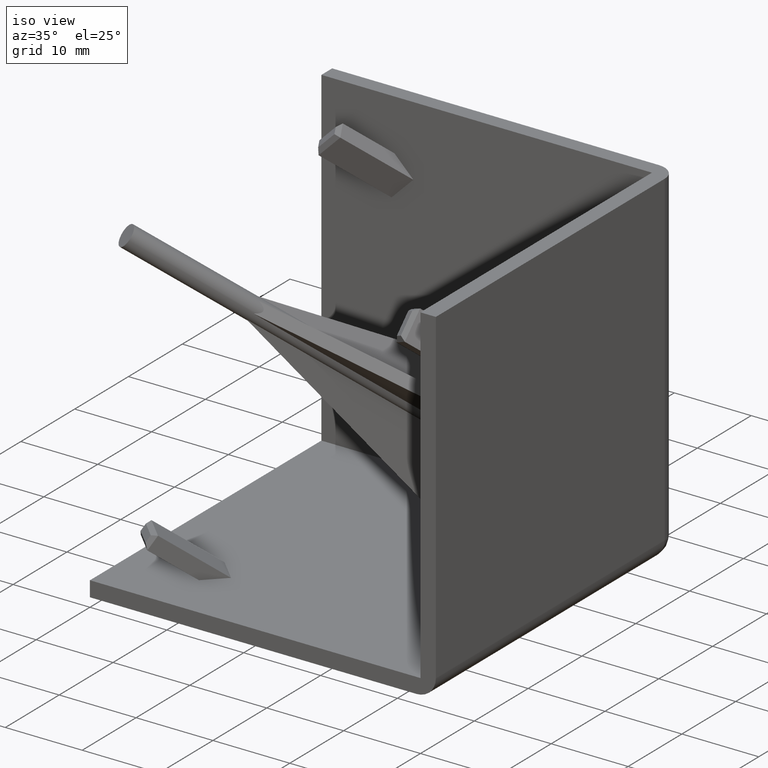
[diagram: clean part render]
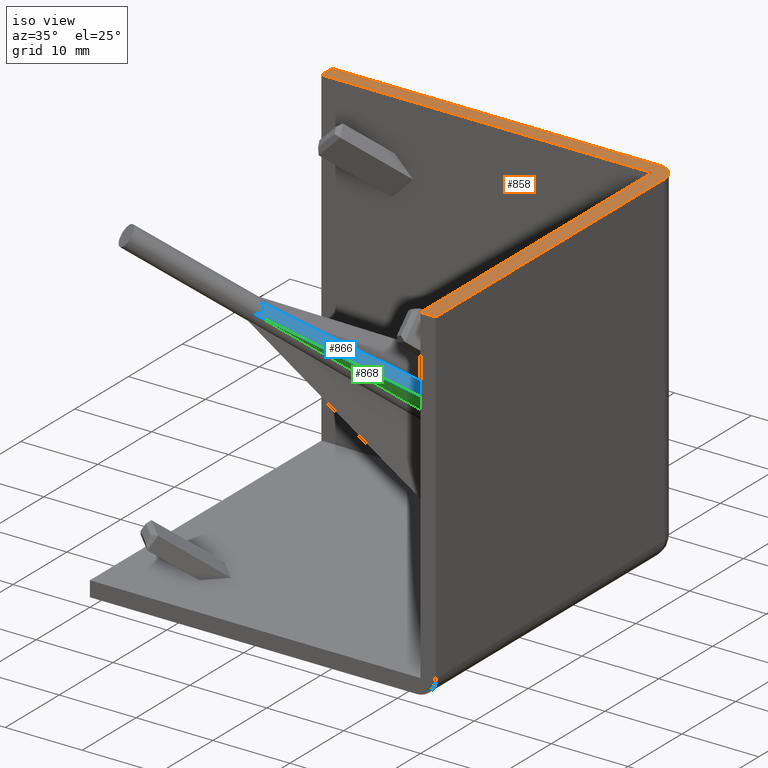
[diagram: same view with three faces highlighted in distinct colors, each labeled with its STEP entity id]
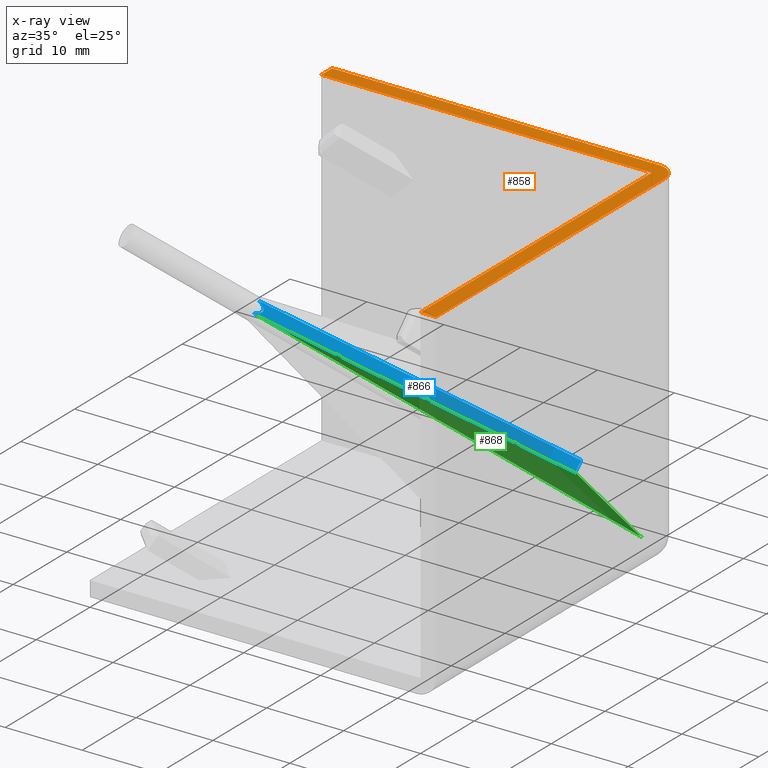
[diagram: x-ray of the same camera — body ghosted, the three highlighted faces saturated]
A machine part, iso view with three faces highlighted in distinct colors.
The next image is the same camera in x-ray (body ghosted, the three faces saturated) — at least one of them is partly hidden behind the body in this view.
Their STEP definitions:

[orange] entity #858 — the highlighted planar face has unit normal (0, 0, -1).
#27=PLANE('',#945);
#74=FACE_OUTER_BOUND('',#128,.T.);
#128=EDGE_LOOP('',(#683,#684,#685,#686,#687,#688,#689));
#173=CIRCLE('',#946,2.5);
#199=LINE('',#1304,#305);
#200=LINE('',#1307,#306);
#205=LINE('',#1318,#311);
#208=LINE('',#1325,#314);
#213=LINE('',#1334,#319);
#222=LINE('',#1350,#328);
#305=VECTOR('',#1045,1000.);
#306=VECTOR('',#1048,1000.);
#311=VECTOR('',#1055,1000.);
#314=VECTOR('',#1062,1000.);
#319=VECTOR('',#1069,1000.);
#328=VECTOR('',#1080,1000.);
#426=VERTEX_POINT('',#1295);
#429=VERTEX_POINT('',#1302);
#430=VERTEX_POINT('',#1306);
#434=VERTEX_POINT('',#1315);
#435=VERTEX_POINT('',#1317);
#437=VERTEX_POINT('',#1324);
#440=VERTEX_POINT('',#1333);
#510=EDGE_CURVE('',#426,#429,#199,.T.);
#511=EDGE_CURVE('',#430,#426,#200,.T.);
#516=EDGE_CURVE('',#435,#434,#205,.T.);
#520=EDGE_CURVE('',#437,#435,#208,.T.);
#525=EDGE_CURVE('',#440,#437,#213,.T.);
#534=EDGE_CURVE('',#429,#440,#222,.T.);
#541=EDGE_CURVE('',#434,#430,#173,.T.);
#683=ORIENTED_EDGE('',*,*,#516,.T.);
#684=ORIENTED_EDGE('',*,*,#541,.T.);
#685=ORIENTED_EDGE('',*,*,#511,.T.);
#686=ORIENTED_EDGE('',*,*,#510,.T.);
#687=ORIENTED_EDGE('',*,*,#534,.T.);
#688=ORIENTED_EDGE('',*,*,#525,.T.);
#689=ORIENTED_EDGE('',*,*,#520,.T.);
#858=ADVANCED_FACE('',(#74),#27,.F.);
#945=AXIS2_PLACEMENT_3D('',#1363,#1089,#1090);
#946=AXIS2_PLACEMENT_3D('',#1364,#1091,#1092);
#1045=DIRECTION('',(0.,-1.,0.));
#1048=DIRECTION('',(-1.,0.,0.));
#1055=DIRECTION('',(0.,1.,0.));
#1062=DIRECTION('',(1.,0.,0.));
#1069=DIRECTION('',(1.61369625672261E-16,-1.,0.));
#1080=DIRECTION('',(1.,0.,0.));
#1089=DIRECTION('center_axis',(0.,0.,-1.));
#1090=DIRECTION('ref_axis',(-1.,0.,0.));
#1091=DIRECTION('center_axis',(0.,0.,1.));
#1092=DIRECTION('ref_axis',(-1.,0.,0.));
#1295=CARTESIAN_POINT('',(0.,45.,0.));
#1302=CARTESIAN_POINT('',(0.,43.,0.));
#1304=CARTESIAN_POINT('',(0.,43.,0.));
#1306=CARTESIAN_POINT('',(42.5,45.,0.));
#1307=CARTESIAN_POINT('',(0.,45.,0.));
#1315=CARTESIAN_POINT('',(45.,42.5,0.));
#1317=CARTESIAN_POINT('',(45.,0.,0.));
#1318=CARTESIAN_POINT('',(45.,0.,0.));
#1324=CARTESIAN_POINT('',(43.,0.,0.));
#1325=CARTESIAN_POINT('',(43.,0.,0.));
#1333=CARTESIAN_POINT('',(43.,43.,0.));
#1334=CARTESIAN_POINT('',(43.,0.,0.));
#1350=CARTESIAN_POINT('',(0.,43.,0.));
#1363=CARTESIAN_POINT('Origin',(0.,45.,0.));
#1364=CARTESIAN_POINT('Origin',(42.5,42.5,0.));

[blue] entity #866 — the highlighted planar face has unit normal (-0.6392, 0.5438, -0.5438).
#35=PLANE('',#954);
#82=FACE_OUTER_BOUND('',#136,.T.);
#136=EDGE_LOOP('',(#712,#713,#714,#715));
#211=LINE('',#1331,#317);
#233=LINE('',#1377,#339);
#234=LINE('',#1378,#340);
#317=VECTOR('',#1067,1000.);
#339=VECTOR('',#1113,1000.);
#340=VECTOR('',#1114,1000.);
#396=ELLIPSE('',#932,5.40918462721993,1.40000000000014);
#411=VERTEX_POINT('',#1261);
#412=VERTEX_POINT('',#1263);
#438=VERTEX_POINT('',#1328);
#439=VERTEX_POINT('',#1330);
#489=EDGE_CURVE('',#411,#412,#396,.T.);
#523=EDGE_CURVE('',#438,#439,#211,.T.);
#546=EDGE_CURVE('',#412,#438,#233,.T.);
#547=EDGE_CURVE('',#411,#439,#234,.T.);
#712=ORIENTED_EDGE('',*,*,#523,.F.);
#713=ORIENTED_EDGE('',*,*,#546,.F.);
#714=ORIENTED_EDGE('',*,*,#489,.F.);
#715=ORIENTED_EDGE('',*,*,#547,.T.);
#866=ADVANCED_FACE('',(#82),#35,.F.);
#932=AXIS2_PLACEMENT_3D('',#1264,#1016,#1017);
#954=AXIS2_PLACEMENT_3D('',#1376,#1111,#1112);
#1016=DIRECTION('center_axis',(0.639245889233471,-0.543766812658754,0.543766812658743));
#1017=DIRECTION('ref_axis',(0.769002401230392,0.452015103122615,-0.45201510312261));
#1067=DIRECTION('',(1.1410555659039E-16,-0.707106781186543,-0.707106781186552));
#1111=DIRECTION('center_axis',(-0.63924588923347,0.543766812658752,-0.543766812658746));
#1112=DIRECTION('ref_axis',(-0.647930480817355,-0.761699476189784,5.55111512312578E-17));
#1113=DIRECTION('',(0.769002401230393,0.452015103122611,-0.452015103122612));
#1114=DIRECTION('',(0.769002401230393,0.452015103122611,-0.452015103122612));
#1261=CARTESIAN_POINT('',(13.3273821156449,11.349208806198,-12.4098689779778));
#1263=CARTESIAN_POINT('',(13.3273821156449,12.4098689779778,-11.349208806198));
#1264=CARTESIAN_POINT('Origin',(9.81495457622275,9.8149545762231,-9.81495457622314));
#1328=CARTESIAN_POINT('',(43.,29.8512598129802,-28.7905996412004));
#1330=CARTESIAN_POINT('',(43.,28.7905996412003,-29.8512598129802));
#1331=CARTESIAN_POINT('',(43.,6.82092972709045,-51.8209297270904));
#1376=CARTESIAN_POINT('Origin',(9.81495457622364,10.3452846621135,-9.28462449033372));
#1377=CARTESIAN_POINT('',(9.81495457622364,10.3452846621135,-9.28462449033372));
#1378=CARTESIAN_POINT('',(9.81495457622363,9.28462449033373,-10.3452846621135));

[green] entity #868 — the highlighted planar face has unit normal (0, 0.7071, 0.7071).
#37=PLANE('',#956);
#84=FACE_OUTER_BOUND('',#138,.T.);
#138=EDGE_LOOP('',(#719,#720,#721));
#181=LINE('',#1262,#287);
#212=LINE('',#1332,#318);
#234=LINE('',#1378,#340);
#287=VECTOR('',#1015,1000.);
#318=VECTOR('',#1068,1000.);
#340=VECTOR('',#1114,1000.);
#410=VERTEX_POINT('',#1259);
#411=VERTEX_POINT('',#1261);
#439=VERTEX_POINT('',#1330);
#488=EDGE_CURVE('',#410,#411,#181,.T.);
#524=EDGE_CURVE('',#439,#410,#212,.T.);
#547=EDGE_CURVE('',#411,#439,#234,.T.);
#719=ORIENTED_EDGE('',*,*,#524,.F.);
#720=ORIENTED_EDGE('',*,*,#547,.F.);
#721=ORIENTED_EDGE('',*,*,#488,.F.);
#868=ADVANCED_FACE('',(#84),#37,.F.);
#956=AXIS2_PLACEMENT_3D('',#1380,#1117,#1118);
#1015=DIRECTION('',(-0.577350269189626,-0.577350269189626,0.577350269189626));
#1068=DIRECTION('',(-1.14105556590391E-16,0.707106781186549,-0.707106781186546));
#1114=DIRECTION('',(0.769002401230393,0.452015103122611,-0.452015103122612));
#1117=DIRECTION('center_axis',(3.71432663724464E-15,0.707106781186546,0.707106781186549));
#1118=DIRECTION('ref_axis',(1.03113982271956E-16,-0.707106781186549,0.707106781186546));
#1259=CARTESIAN_POINT('',(43.,41.0218266905531,-42.0824868623329));
#1261=CARTESIAN_POINT('',(13.3273821156449,11.349208806198,-12.4098689779778));
#1262=CARTESIAN_POINT('',(3.75155676524549,1.77338345579856,-2.83404362757839));
#1330=CARTESIAN_POINT('',(43.,28.7905996412003,-29.8512598129802));
#1332=CARTESIAN_POINT('',(43.,21.96966991411,-23.0303300858899));
#1378=CARTESIAN_POINT('',(9.81495457622363,9.28462449033373,-10.3452846621135));
#1380=CARTESIAN_POINT('Origin',(44.6152442952576,29.7400307684906,-30.8006909402705));